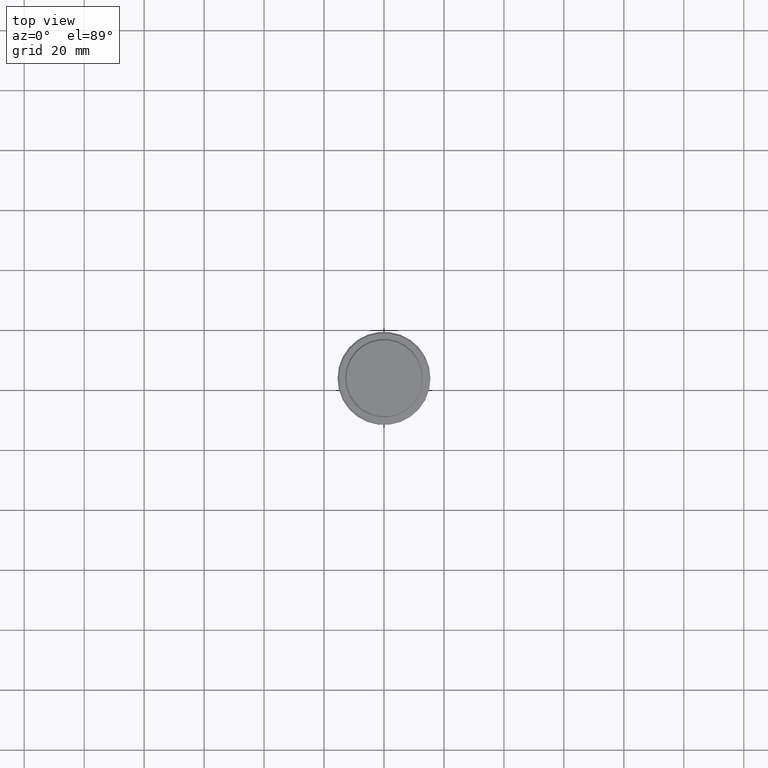
[diagram: clean part render]
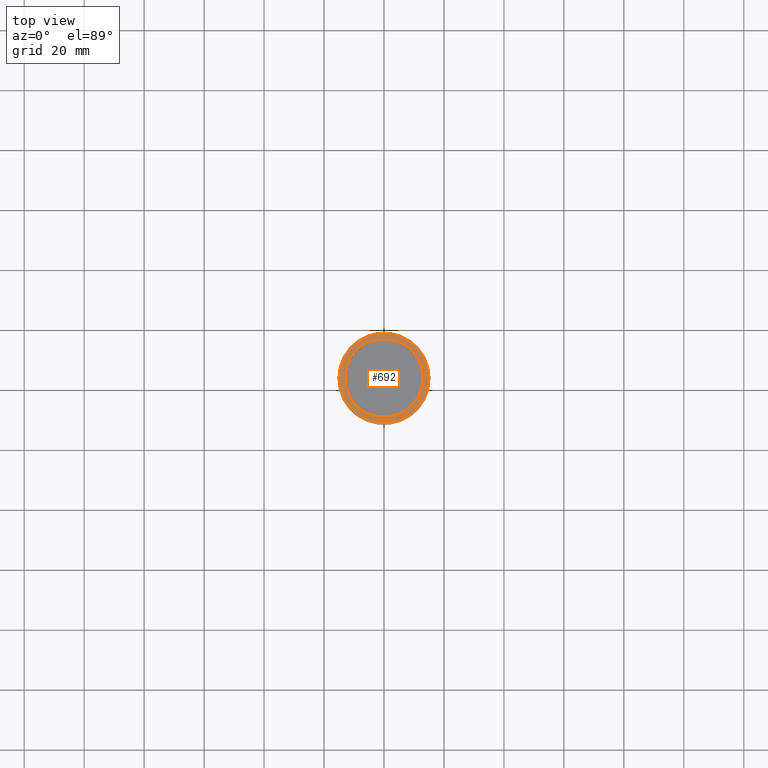
[diagram: same view with one face highlighted and labeled with its STEP entity id]
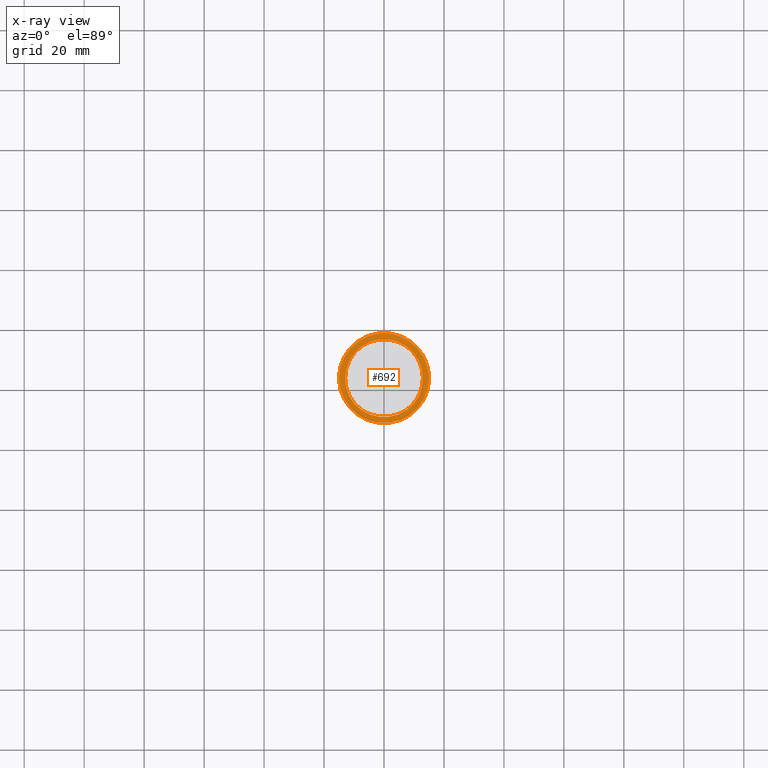
[diagram: x-ray of the same camera — body ghosted, the highlighted face saturated]
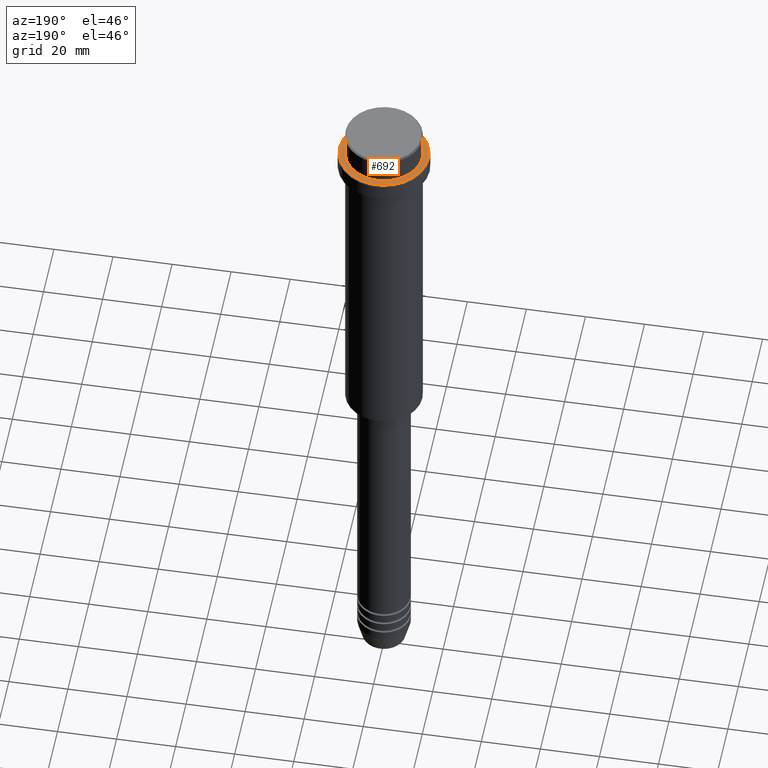
[diagram: same view with one face highlighted and labeled with its STEP entity id]
A machine part, top view. The second image highlights one B-rep face of the part: STEP entity #692.
The next image is the same camera in x-ray: the body ghosted, the highlighted face saturated — about 0% of this face is hidden behind the body in this view.
A second angle (auxiliary view) of the same face is appended — the face is thin or edge-on in the first view.
In plain terms, the highlighted planar face has unit normal (0, -0, 1).
Its self-contained STEP definition (entity closure, byte-faithful):
#87 = DIRECTION ( 'NONE',  ( 1.000000000000000000, 0.000000000000000000, 0.000000000000000000 ) ) ;
#105 = VERTEX_POINT ( 'NONE', #146 ) ;
#146 = CARTESIAN_POINT ( 'NONE',  ( 14.99999999999995737, 1.867586368699711009E-15, -9.000000000000001776 ) ) ;
#162 = EDGE_CURVE ( 'NONE', #647, #1395, #878, .T. ) ;
#237 = FACE_BOUND ( 'NONE', #619, .T. ) ;
#251 = DIRECTION ( 'NONE',  ( 1.000000000000000000, 0.000000000000000000, 0.000000000000000000 ) ) ;
#294 = AXIS2_PLACEMENT_3D ( 'NONE', #1160, #1146, #605 ) ;
#308 = ORIENTED_EDGE ( 'NONE', *, *, #162, .T. ) ;
#343 = CIRCLE ( 'NONE', #601, 14.99999999999995737 ) ;
#381 = CARTESIAN_POINT ( 'NONE',  ( 0.000000000000000000, 0.000000000000000000, -9.000000000000001776 ) ) ;
#432 = PLANE ( 'NONE',  #973 ) ;
#433 = VERTEX_POINT ( 'NONE', #1179 ) ;
#546 = DIRECTION ( 'NONE',  ( 0.000000000000000000, -0.000000000000000000, 1.000000000000000000 ) ) ;
#550 = CARTESIAN_POINT ( 'NONE',  ( 0.000000000000000000, 0.000000000000000000, -9.000000000000001776 ) ) ;
#554 = EDGE_CURVE ( 'NONE', #1395, #647, #1210, .T. ) ;
#556 = CARTESIAN_POINT ( 'NONE',  ( 0.000000000000000000, 0.000000000000000000, -9.000000000000001776 ) ) ;
#601 = AXIS2_PLACEMENT_3D ( 'NONE', #556, #908, #251 ) ;
#604 = DIRECTION ( 'NONE',  ( -0.000000000000000000, -0.000000000000000000, 1.000000000000000000 ) ) ;
#605 = DIRECTION ( 'NONE',  ( 1.000000000000000000, 0.000000000000000000, 0.000000000000000000 ) ) ;
#608 = DIRECTION ( 'NONE',  ( 0.000000000000000000, 0.000000000000000000, -1.000000000000000000 ) ) ;
#619 = EDGE_LOOP ( 'NONE', ( #308, #952 ) ) ;
#625 = AXIS2_PLACEMENT_3D ( 'NONE', #381, #608, #1157 ) ;
#647 = VERTEX_POINT ( 'NONE', #768 ) ;
#692 = ADVANCED_FACE ( 'NONE', ( #706, #237 ), #432, .T. ) ;
#706 = FACE_OUTER_BOUND ( 'NONE', #1401, .T. ) ;
#768 = CARTESIAN_POINT ( 'NONE',  ( 12.99999999999999467, 0.000000000000000000, -9.000000000000001776 ) ) ;
#847 = EDGE_CURVE ( 'NONE', #105, #433, #343, .T. ) ;
#878 = CIRCLE ( 'NONE', #294, 12.99999999999999467 ) ;
#888 = CARTESIAN_POINT ( 'NONE',  ( -12.99999999999999467, 1.592040838891558504E-15, -9.000000000000001776 ) ) ;
#889 = DIRECTION ( 'NONE',  ( 1.000000000000000000, 0.000000000000000000, 0.000000000000000000 ) ) ;
#908 = DIRECTION ( 'NONE',  ( -0.000000000000000000, -0.000000000000000000, 1.000000000000000000 ) ) ;
#952 = ORIENTED_EDGE ( 'NONE', *, *, #554, .T. ) ;
#972 = CARTESIAN_POINT ( 'NONE',  ( 0.000000000000000000, 12.49999999999999289, -9.000000000000001776 ) ) ;
#973 = AXIS2_PLACEMENT_3D ( 'NONE', #972, #546, #87 ) ;
#979 = ORIENTED_EDGE ( 'NONE', *, *, #847, .T. ) ;
#1023 = EDGE_CURVE ( 'NONE', #433, #105, #1404, .T. ) ;
#1146 = DIRECTION ( 'NONE',  ( 0.000000000000000000, 0.000000000000000000, -1.000000000000000000 ) ) ;
#1157 = DIRECTION ( 'NONE',  ( 1.000000000000000000, 0.000000000000000000, 0.000000000000000000 ) ) ;
#1160 = CARTESIAN_POINT ( 'NONE',  ( 0.000000000000000000, 0.000000000000000000, -9.000000000000001776 ) ) ;
#1179 = CARTESIAN_POINT ( 'NONE',  ( -14.99999999999995737, 0.000000000000000000, -9.000000000000001776 ) ) ;
#1210 = CIRCLE ( 'NONE', #625, 12.99999999999999467 ) ;
#1293 = ORIENTED_EDGE ( 'NONE', *, *, #1023, .T. ) ;
#1383 = AXIS2_PLACEMENT_3D ( 'NONE', #550, #604, #889 ) ;
#1395 = VERTEX_POINT ( 'NONE', #888 ) ;
#1401 = EDGE_LOOP ( 'NONE', ( #1293, #979 ) ) ;
#1404 = CIRCLE ( 'NONE', #1383, 14.99999999999995737 ) ;